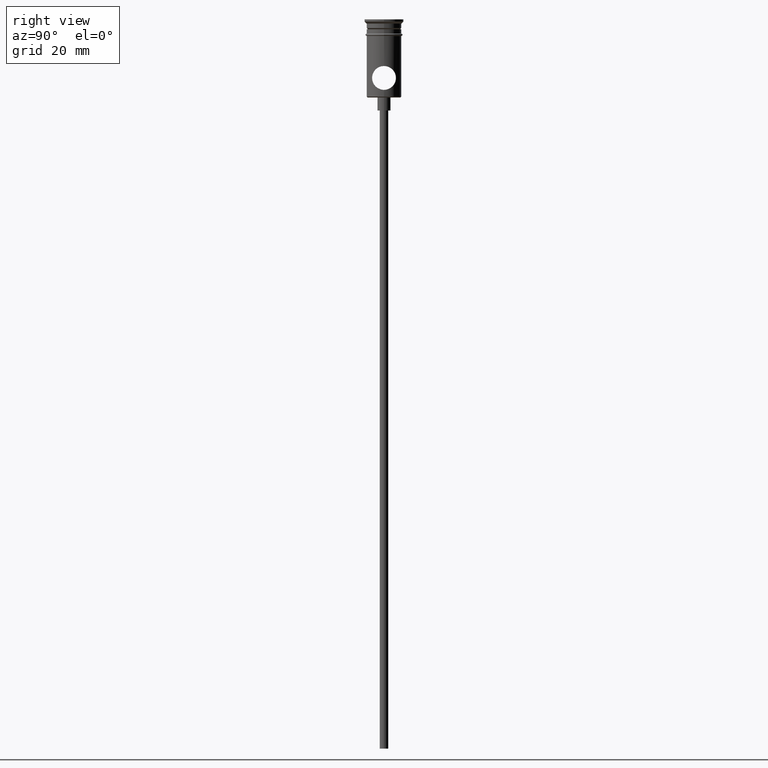
[diagram: clean part render]
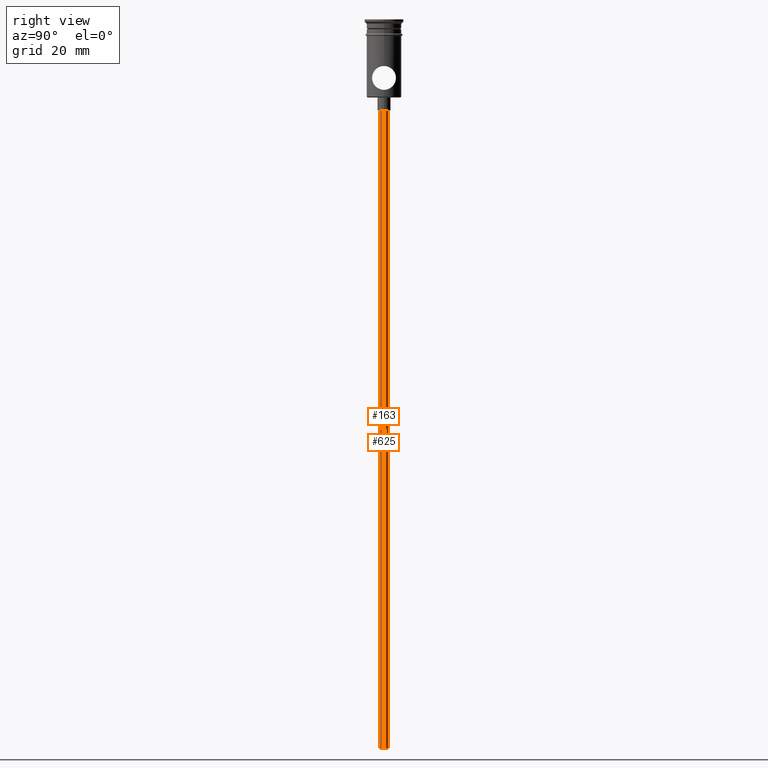
[diagram: same view with one multi-face feature highlighted, each face labeled with its STEP entity id]
A machine part, right view. The highlighted faces form ONE feature: a constant-radius fillet chain: 2 tangent blend faces with common blend radius 1 mm. The faces share edges in the B-rep.
Their STEP definitions:
[1] entity #625 (Cylinder):
#15 = DIRECTION ( 'NONE',  ( -0.000000000000000000, -0.000000000000000000, 1.000000000000000000 ) ) ;
#69 = DIRECTION ( 'NONE',  ( -0.000000000000000000, -0.000000000000000000, 1.000000000000000000 ) ) ;
#136 = EDGE_CURVE ( 'NONE', #550, #424, #1116, .T. ) ;
#153 = AXIS2_PLACEMENT_3D ( 'NONE', #1055, #813, #269 ) ;
#160 = VERTEX_POINT ( 'NONE', #222 ) ;
#174 = VECTOR ( 'NONE', #69, 1000.000000000000000 ) ;
#222 = CARTESIAN_POINT ( 'NONE',  ( -0.9999999999999997780, 1.224646799147352961E-16, -20.99999999999999645 ) ) ;
#252 = EDGE_CURVE ( 'NONE', #160, #424, #1146, .T. ) ;
#269 = DIRECTION ( 'NONE',  ( -1.000000000000000000, 0.000000000000000000, 0.000000000000000000 ) ) ;
#278 = VERTEX_POINT ( 'NONE', #1250 ) ;
#424 = VERTEX_POINT ( 'NONE', #848 ) ;
#453 = DIRECTION ( 'NONE',  ( -0.000000000000000000, -0.000000000000000000, 1.000000000000000000 ) ) ;
#455 = FACE_OUTER_BOUND ( 'NONE', #482, .T. ) ;
#462 = CIRCLE ( 'NONE', #1332, 0.9999999999999997780 ) ;
#482 = EDGE_LOOP ( 'NONE', ( #1136, #1204, #642, #1095 ) ) ;
#550 = VERTEX_POINT ( 'NONE', #1372 ) ;
#568 = EDGE_CURVE ( 'NONE', #278, #160, #618, .T. ) ;
#618 = LINE ( 'NONE', #1059, #174 ) ;
#625 = ADVANCED_FACE ( 'NONE', ( #455 ), #884, .T. ) ;
#635 = CARTESIAN_POINT ( 'NONE',  ( 0.000000000000000000, 0.000000000000000000, -167.9999999999999716 ) ) ;
#642 = ORIENTED_EDGE ( 'NONE', *, *, #252, .T. ) ;
#654 = DIRECTION ( 'NONE',  ( -1.000000000000000000, 0.000000000000000000, 0.000000000000000000 ) ) ;
#813 = DIRECTION ( 'NONE',  ( 0.000000000000000000, 0.000000000000000000, -1.000000000000000000 ) ) ;
#848 = CARTESIAN_POINT ( 'NONE',  ( 0.9999999999999997780, 0.000000000000000000, -20.99999999999999645 ) ) ;
#884 = CYLINDRICAL_SURFACE ( 'NONE', #1219, 0.9999999999999997780 ) ;
#891 = DIRECTION ( 'NONE',  ( 1.000000000000000000, 0.000000000000000000, 0.000000000000000000 ) ) ;
#980 = DIRECTION ( 'NONE',  ( 0.000000000000000000, 0.000000000000000000, -1.000000000000000000 ) ) ;
#1002 = CARTESIAN_POINT ( 'NONE',  ( 0.000000000000000000, 0.000000000000000000, -167.9999999999999716 ) ) ;
#1055 = CARTESIAN_POINT ( 'NONE',  ( 0.000000000000000000, 0.000000000000000000, -20.99999999999999645 ) ) ;
#1059 = CARTESIAN_POINT ( 'NONE',  ( -0.9999999999999997780, 1.224646799147352961E-16, -167.9999999999999716 ) ) ;
#1095 = ORIENTED_EDGE ( 'NONE', *, *, #136, .F. ) ;
#1116 = LINE ( 'NONE', #1314, #1307 ) ;
#1136 = ORIENTED_EDGE ( 'NONE', *, *, #1356, .F. ) ;
#1146 = CIRCLE ( 'NONE', #153, 0.9999999999999997780 ) ;
#1204 = ORIENTED_EDGE ( 'NONE', *, *, #568, .T. ) ;
#1219 = AXIS2_PLACEMENT_3D ( 'NONE', #1002, #15, #891 ) ;
#1250 = CARTESIAN_POINT ( 'NONE',  ( -0.9999999999999997780, 1.224646799147352961E-16, -167.9999999999999716 ) ) ;
#1307 = VECTOR ( 'NONE', #453, 1000.000000000000000 ) ;
#1314 = CARTESIAN_POINT ( 'NONE',  ( 0.9999999999999997780, 0.000000000000000000, -167.9999999999999716 ) ) ;
#1332 = AXIS2_PLACEMENT_3D ( 'NONE', #635, #980, #654 ) ;
#1356 = EDGE_CURVE ( 'NONE', #278, #550, #462, .T. ) ;
#1372 = CARTESIAN_POINT ( 'NONE',  ( 0.9999999999999997780, 0.000000000000000000, -167.9999999999999716 ) ) ;
[2] entity #163 (Cylinder):
#21 = FACE_OUTER_BOUND ( 'NONE', #602, .T. ) ;
#30 = CARTESIAN_POINT ( 'NONE',  ( 0.000000000000000000, 0.000000000000000000, -167.9999999999999716 ) ) ;
#69 = DIRECTION ( 'NONE',  ( -0.000000000000000000, -0.000000000000000000, 1.000000000000000000 ) ) ;
#82 = ORIENTED_EDGE ( 'NONE', *, *, #568, .F. ) ;
#136 = EDGE_CURVE ( 'NONE', #550, #424, #1116, .T. ) ;
#160 = VERTEX_POINT ( 'NONE', #222 ) ;
#163 = ADVANCED_FACE ( 'NONE', ( #21 ), #334, .T. ) ;
#174 = VECTOR ( 'NONE', #69, 1000.000000000000000 ) ;
#222 = CARTESIAN_POINT ( 'NONE',  ( -0.9999999999999997780, 1.224646799147352961E-16, -20.99999999999999645 ) ) ;
#256 = CIRCLE ( 'NONE', #843, 0.9999999999999997780 ) ;
#278 = VERTEX_POINT ( 'NONE', #1250 ) ;
#334 = CYLINDRICAL_SURFACE ( 'NONE', #909, 0.9999999999999997780 ) ;
#424 = VERTEX_POINT ( 'NONE', #848 ) ;
#453 = DIRECTION ( 'NONE',  ( -0.000000000000000000, -0.000000000000000000, 1.000000000000000000 ) ) ;
#458 = DIRECTION ( 'NONE',  ( -1.000000000000000000, 0.000000000000000000, 0.000000000000000000 ) ) ;
#507 = DIRECTION ( 'NONE',  ( -1.000000000000000000, 0.000000000000000000, 0.000000000000000000 ) ) ;
#550 = VERTEX_POINT ( 'NONE', #1372 ) ;
#568 = EDGE_CURVE ( 'NONE', #278, #160, #618, .T. ) ;
#602 = EDGE_LOOP ( 'NONE', ( #82, #1257, #1186, #1164 ) ) ;
#610 = CARTESIAN_POINT ( 'NONE',  ( 0.000000000000000000, 0.000000000000000000, -167.9999999999999716 ) ) ;
#618 = LINE ( 'NONE', #1059, #174 ) ;
#773 = DIRECTION ( 'NONE',  ( 0.000000000000000000, 0.000000000000000000, -1.000000000000000000 ) ) ;
#820 = CIRCLE ( 'NONE', #1393, 0.9999999999999997780 ) ;
#843 = AXIS2_PLACEMENT_3D ( 'NONE', #896, #773, #458 ) ;
#848 = CARTESIAN_POINT ( 'NONE',  ( 0.9999999999999997780, 0.000000000000000000, -20.99999999999999645 ) ) ;
#896 = CARTESIAN_POINT ( 'NONE',  ( 0.000000000000000000, 0.000000000000000000, -20.99999999999999645 ) ) ;
#909 = AXIS2_PLACEMENT_3D ( 'NONE', #30, #1026, #1021 ) ;
#1021 = DIRECTION ( 'NONE',  ( 1.000000000000000000, 0.000000000000000000, 0.000000000000000000 ) ) ;
#1026 = DIRECTION ( 'NONE',  ( -0.000000000000000000, -0.000000000000000000, 1.000000000000000000 ) ) ;
#1059 = CARTESIAN_POINT ( 'NONE',  ( -0.9999999999999997780, 1.224646799147352961E-16, -167.9999999999999716 ) ) ;
#1116 = LINE ( 'NONE', #1314, #1307 ) ;
#1164 = ORIENTED_EDGE ( 'NONE', *, *, #1222, .T. ) ;
#1186 = ORIENTED_EDGE ( 'NONE', *, *, #136, .T. ) ;
#1222 = EDGE_CURVE ( 'NONE', #424, #160, #256, .T. ) ;
#1250 = CARTESIAN_POINT ( 'NONE',  ( -0.9999999999999997780, 1.224646799147352961E-16, -167.9999999999999716 ) ) ;
#1257 = ORIENTED_EDGE ( 'NONE', *, *, #1285, .F. ) ;
#1285 = EDGE_CURVE ( 'NONE', #550, #278, #820, .T. ) ;
#1307 = VECTOR ( 'NONE', #453, 1000.000000000000000 ) ;
#1314 = CARTESIAN_POINT ( 'NONE',  ( 0.9999999999999997780, 0.000000000000000000, -167.9999999999999716 ) ) ;
#1372 = CARTESIAN_POINT ( 'NONE',  ( 0.9999999999999997780, 0.000000000000000000, -167.9999999999999716 ) ) ;
#1376 = DIRECTION ( 'NONE',  ( 0.000000000000000000, 0.000000000000000000, -1.000000000000000000 ) ) ;
#1393 = AXIS2_PLACEMENT_3D ( 'NONE', #610, #1376, #507 ) ;